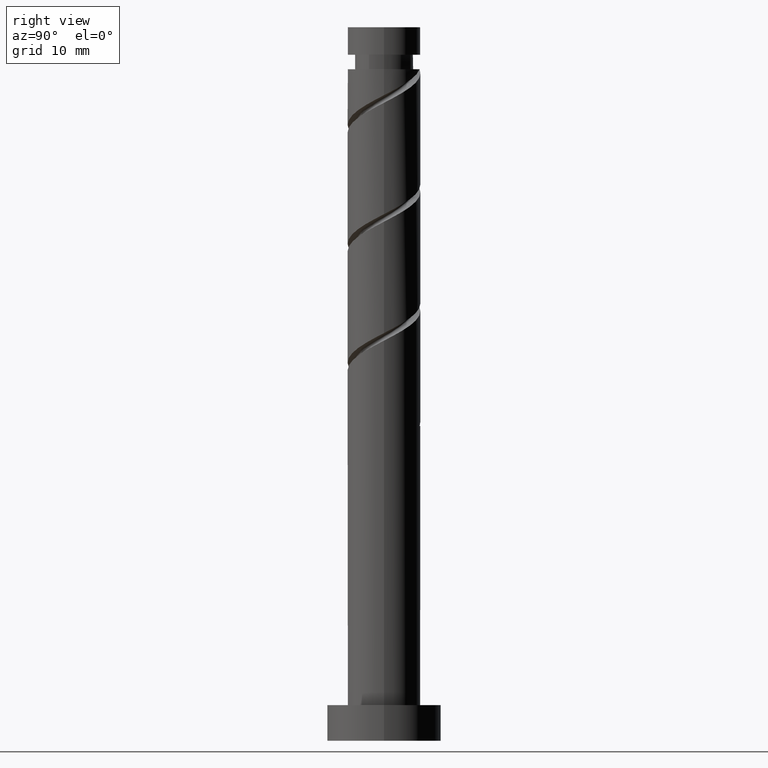
[diagram: clean part render]
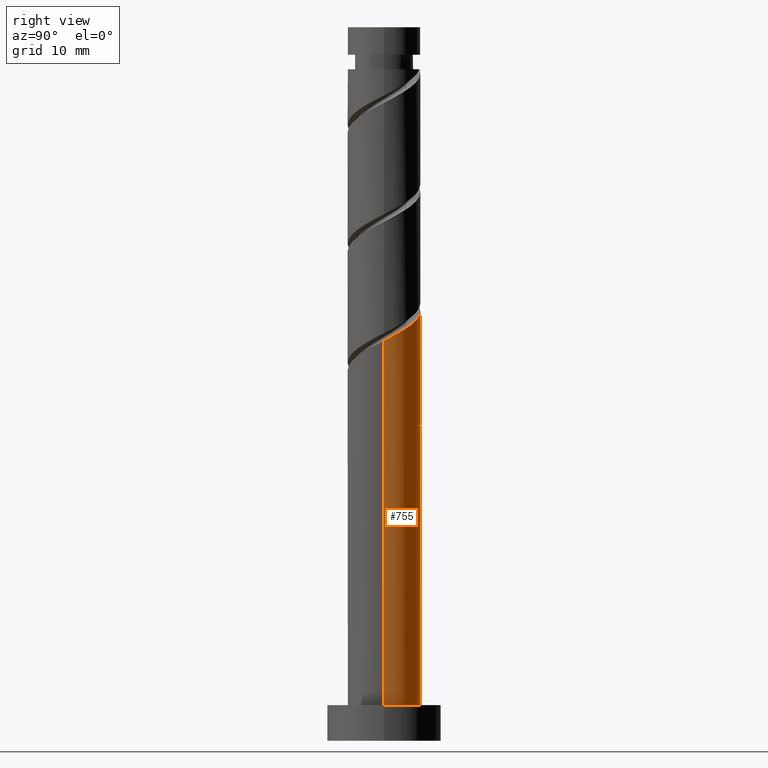
[diagram: same view with one face highlighted and labeled with its STEP entity id]
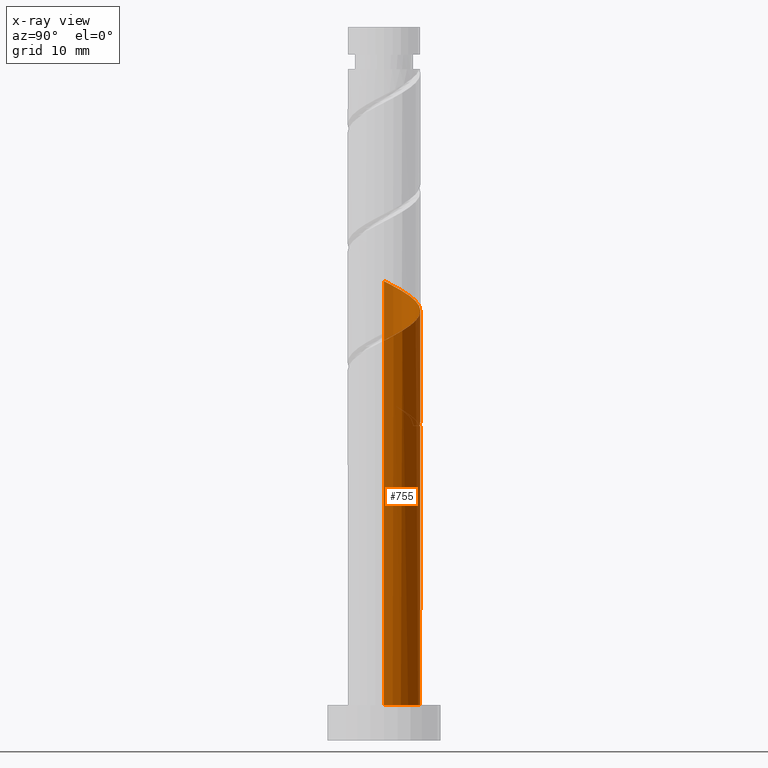
[diagram: x-ray of the same camera — body ghosted, the highlighted face saturated]
A machine part, right view. The second image highlights one B-rep face of the part: STEP entity #755.
The next image is the same camera in x-ray: the body ghosted, the highlighted face saturated — about 0% of this face is hidden behind the body in this view.
In plain terms, the highlighted cylindrical surface (edge-blend (fillet) strip) has radius 5.1 mm, axis along (-0, -0, -1).
Its self-contained STEP definition (entity closure, byte-faithful):
#5 = CARTESIAN_POINT ( 'NONE',  ( -5.099999999999997868, -2.323009298041986079E-15, 48.80950097679061628 ) ) ;
#18 = CARTESIAN_POINT ( 'NONE',  ( 5.099999999999999645, 6.245698675651500839E-16, 5.000000000000000000 ) ) ;
#28 = CARTESIAN_POINT ( 'NONE',  ( -2.663098675813944549, 4.349471857924601892, 45.03790534772777931 ) ) ;
#41 = CARTESIAN_POINT ( 'NONE',  ( -5.099999999999999645, 0.000000000000000000, 100.0000000000000000 ) ) ;
#45 = DIRECTION ( 'NONE',  ( -0.000000000000000000, -0.000000000000000000, -1.000000000000000000 ) ) ;
#52 = CARTESIAN_POINT ( 'NONE',  ( 0.000000000000000000, 0.000000000000000000, 100.0000000000000000 ) ) ;
#55 = DIRECTION ( 'NONE',  ( 1.000000000000000000, 0.000000000000000000, 0.000000000000000000 ) ) ;
#57 = EDGE_CURVE ( 'NONE', #1335, #1312, #670, .T. ) ;
#70 = VECTOR ( 'NONE', #715, 1000.000000000000000 ) ;
#106 = CARTESIAN_POINT ( 'NONE',  ( -5.099999999999999645, 0.000000000000000000, 5.000000000000000000 ) ) ;
#110 = CARTESIAN_POINT ( 'NONE',  ( -4.745835839194858963, 1.867362361035910689, 47.81568312550557209 ) ) ;
#116 = CARTESIAN_POINT ( 'NONE',  ( -5.099999999999999645, 0.000000000000000000, 100.0000000000000000 ) ) ;
#150 = CARTESIAN_POINT ( 'NONE',  ( -4.550174408452618557, 2.472770727741262053, 46.42679423661669347 ) ) ;
#157 = CARTESIAN_POINT ( 'NONE',  ( -4.835838561039004446, 1.620081915079684354, 46.88975719957963406 ) ) ;
#162 = CARTESIAN_POINT ( 'NONE',  ( -5.100000000000006750, 3.674985770535848914E-15, 64.41445786681309471 ) ) ;
#209 = EDGE_CURVE ( 'NONE', #394, #329, #869, .T. ) ;
#237 = EDGE_CURVE ( 'NONE', #1312, #1189, #827, .T. ) ;
#239 = DIRECTION ( 'NONE',  ( -1.510533289715479076E-30, -6.802837160693364202E-15, -1.000000000000000000 ) ) ;
#253 = CARTESIAN_POINT ( 'NONE',  ( -1.645074290006728557, 4.910439165662267236, 45.50086831069075544 ) ) ;
#261 = CARTESIAN_POINT ( 'NONE',  ( -3.990101162325420781, 3.176333218415438697, 45.96383127365371735 ) ) ;
#318 = CARTESIAN_POINT ( 'NONE',  ( 5.100000000000006750, -3.742211119996870112E-15, 56.08112453347976611 ) ) ;
#321 = AXIS2_PLACEMENT_3D ( 'NONE', #382, #509, #55 ) ;
#329 = VERTEX_POINT ( 'NONE', #1100 ) ;
#331 = CARTESIAN_POINT ( 'NONE',  ( -1.014887185848751594, 4.998000000000004661, 60.77864608846851979 ) ) ;
#338 = FACE_OUTER_BOUND ( 'NONE', #535, .T. ) ;
#345 = VECTOR ( 'NONE', #962, 1000.000000000000000 ) ;
#366 = CARTESIAN_POINT ( 'NONE',  ( -1.014887185848751594, 4.998000000000004661, 44.11197942180186260 ) ) ;
#371 = CARTESIAN_POINT ( 'NONE',  ( 0.1336049362678445318, 5.176951993240419547, 44.57494238476482451 ) ) ;
#379 = ORIENTED_EDGE ( 'NONE', *, *, #209, .F. ) ;
#382 = CARTESIAN_POINT ( 'NONE',  ( 0.000000000000000000, 0.000000000000000000, 5.000000000000000000 ) ) ;
#394 = VERTEX_POINT ( 'NONE', #5 ) ;
#408 = ORIENTED_EDGE ( 'NONE', *, *, #478, .T. ) ;
#424 = ORIENTED_EDGE ( 'NONE', *, *, #711, .T. ) ;
#425 = CARTESIAN_POINT ( 'NONE',  ( 5.099999999999999645, 6.245698675651500839E-16, 100.0000000000000000 ) ) ;
#443 = CARTESIAN_POINT ( 'NONE',  ( -2.663098675813944549, 4.349471857924601892, 61.70457201439446493 ) ) ;
#448 = ORIENTED_EDGE ( 'NONE', *, *, #735, .F. ) ;
#461 = CIRCLE ( 'NONE', #321, 5.099999999999999645 ) ;
#478 = EDGE_CURVE ( 'NONE', #852, #1459, #1247, .T. ) ;
#484 = CARTESIAN_POINT ( 'NONE',  ( -3.820951375190247301, 3.377918084920318531, 46.88975719957964827 ) ) ;
#500 = ORIENTED_EDGE ( 'NONE', *, *, #57, .F. ) ;
#509 = DIRECTION ( 'NONE',  ( 0.000000000000000000, 0.000000000000000000, 1.000000000000000000 ) ) ;
#524 = LINE ( 'NONE', #41, #345 ) ;
#535 = EDGE_LOOP ( 'NONE', ( #448, #408, #1216, #1440, #500, #424, #379, #1318 ) ) ;
#571 = CARTESIAN_POINT ( 'NONE',  ( -1.896169435429662320, 4.819048006759585334, 61.24160905143150302 ) ) ;
#576 = CARTESIAN_POINT ( 'NONE',  ( -4.550174408452618557, 2.472770727741262053, 63.09346090328337198 ) ) ;
#585 = CARTESIAN_POINT ( 'NONE',  ( -5.099999999999997868, 0.06579853909330653228, 48.77548360285825879 ) ) ;
#590 = VECTOR ( 'NONE', #1344, 1000.000000000000000 ) ;
#596 = DIRECTION ( 'NONE',  ( 0.000000000000000000, 1.000000000000000000, -6.802837160693361835E-15 ) ) ;
#625 = CARTESIAN_POINT ( 'NONE',  ( -5.100000000000004974, 0.8315772962843317462, 47.31787168778081565 ) ) ;
#670 =( BOUNDED_CURVE ( )  B_SPLINE_CURVE ( 2, ( #366, #1068, #28, #1408, #261, #150, #157, #625, #1076 ),
 .UNSPECIFIED., .F., .T. ) 
 B_SPLINE_CURVE_WITH_KNOTS ( ( 3, 2, 2, 2, 3 ),
 ( 0.000000000000000000, 0.01388888888888884128, 0.02777777777777779011, 0.04166666666666662966, 0.05452480538552905570 ),
 .UNSPECIFIED. ) 
 CURVE ( )  GEOMETRIC_REPRESENTATION_ITEM ( )  RATIONAL_B_SPLINE_CURVE ( ( 0.9090909090909141677, 0.8952797754656484086, 0.9090909090909141677, 0.8952797754656484086, 0.9090909090909141677, 0.8952797754656484086, 0.9090909090909141677, 0.8963047551055886020, 0.9071930855141262517 ) ) 
 REPRESENTATION_ITEM ( '' )  );
#682 =( BOUNDED_CURVE ( )  B_SPLINE_CURVE ( 2, ( #934, #1170, #917, #1376, #710, #1051, #1256, #1392, #825, #686, #807, #1140, #331, #571, #443, #693, #1146, #576, #1028, #1479, #908 ),
 .UNSPECIFIED., .F., .T. ) 
 B_SPLINE_CURVE_WITH_KNOTS ( ( 3, 2, 2, 2, 2, 2, 2, 2, 2, 2, 3 ),
 ( 0.1795248053855290626, 0.1805555555555555802, 0.1944444444444444198, 0.2083333333333333703, 0.2222222222222222099, 0.2361111111111111605, 0.2500000000000000000, 0.2638888888888888395, 0.2777777777777777901, 0.2916666666666666297, 0.3045248053855290626 ),
 .UNSPECIFIED. ) 
 CURVE ( )  GEOMETRIC_REPRESENTATION_ITEM ( )  RATIONAL_B_SPLINE_CURVE ( ( 0.9071930855141264738, 0.9080659294509740853, 0.9090909090909141677, 0.8952797754656484086, 0.9090909090909141677, 0.8952797754656484086, 0.9090909090909141677, 0.8952797754656484086, 0.9090909090909141677, 0.8952797754656484086, 0.9090909090909141677, 0.8952797754656484086, 0.9090909090909141677, 0.8952797754656484086, 0.9090909090909141677, 0.8952797754656484086, 0.9090909090909141677, 0.8952797754656484086, 0.9090909090909141677, 0.8963047551055884909, 0.9071930855141264738 ) ) 
 REPRESENTATION_ITEM ( '' )  );
#686 = CARTESIAN_POINT ( 'NONE',  ( 1.645074290006736550, 4.910439165662274341, 59.38975719957966248 ) ) ;
#693 = CARTESIAN_POINT ( 'NONE',  ( -3.430027916198228333, 3.879895709089618894, 62.16753497735742684 ) ) ;
#710 = CARTESIAN_POINT ( 'NONE',  ( 4.745835839194866956, 1.867362361035910912, 57.07494238476483872 ) ) ;
#711 = EDGE_CURVE ( 'NONE', #1335, #329, #1377, .T. ) ;
#715 = DIRECTION ( 'NONE',  ( -0.000000000000000000, -0.000000000000000000, -1.000000000000000000 ) ) ;
#735 = EDGE_CURVE ( 'NONE', #852, #990, #682, .T. ) ;
#755 = ADVANCED_FACE ( 'NONE', ( #338 ), #1088, .T. ) ;
#807 = CARTESIAN_POINT ( 'NONE',  ( 0.7557346768694481742, 5.043695579451349609, 59.85272016254260308 ) ) ;
#816 = CARTESIAN_POINT ( 'NONE',  ( -3.225333278195726461, 4.051654904341470242, 46.42679423661668636 ) ) ;
#825 = CARTESIAN_POINT ( 'NONE',  ( 2.435203784101234170, 4.481047035001873624, 58.92679423661666505 ) ) ;
#827 = LINE ( 'NONE', #116, #70 ) ;
#833 = CARTESIAN_POINT ( 'NONE',  ( 1.014887185848753370, 4.997999999999998444, 44.11197942180186971 ) ) ;
#852 = VERTEX_POINT ( 'NONE', #318 ) ;
#869 =( BOUNDED_CURVE ( )  B_SPLINE_CURVE ( 2, ( #1371, #585, #1286, #1151, #110, #1038, #484, #816, #944, #253, #1482, #371, #833 ),
 .UNSPECIFIED., .F., .T. ) 
 B_SPLINE_CURVE_WITH_KNOTS ( ( 3, 2, 2, 2, 2, 2, 3 ),
 ( 0.9295248053855290626, 0.9305555555555555802, 0.9444444444444444198, 0.9583333333333333703, 0.9722222222222222099, 0.9861111111111111605, 1.000000000000000000 ),
 .UNSPECIFIED. ) 
 CURVE ( )  GEOMETRIC_REPRESENTATION_ITEM ( )  RATIONAL_B_SPLINE_CURVE ( ( 0.9071930855141199235, 0.9080659294509675350, 0.9090909090909076173, 0.8952797754656421914, 0.9090909090909076173, 0.8952797754656421914, 0.9090909090909076173, 0.8952797754656421914, 0.9090909090909076173, 0.8952797754656421914, 0.9090909090909076173, 0.8952797754656421914, 0.9090909090909076173 ) ) 
 REPRESENTATION_ITEM ( '' )  );
#876 = AXIS2_PLACEMENT_3D ( 'NONE', #52, #45, #1311 ) ;
#908 = CARTESIAN_POINT ( 'NONE',  ( -5.100000000000006750, 3.674985770535848914E-15, 64.41445786681309471 ) ) ;
#917 = CARTESIAN_POINT ( 'NONE',  ( 5.098302459915178275, 0.1315751770772746743, 56.14901645883889358 ) ) ;
#926 = CARTESIAN_POINT ( 'NONE',  ( 0.000000000000000000, 0.000000000000000000, 44.11197942180189813 ) ) ;
#934 = CARTESIAN_POINT ( 'NONE',  ( 5.100000000000006750, -3.742211119996870112E-15, 56.08112453347976611 ) ) ;
#944 = CARTESIAN_POINT ( 'NONE',  ( -2.435203784101227065, 4.481047035001870071, 45.96383127365373156 ) ) ;
#945 = AXIS2_PLACEMENT_3D ( 'NONE', #926, #239, #596 ) ;
#962 = DIRECTION ( 'NONE',  ( -0.000000000000000000, -0.000000000000000000, -1.000000000000000000 ) ) ;
#970 = EDGE_CURVE ( 'NONE', #990, #394, #524, .T. ) ;
#990 = VERTEX_POINT ( 'NONE', #162 ) ;
#1028 = CARTESIAN_POINT ( 'NONE',  ( -4.835838561039004446, 1.620081915079684354, 63.55642386624629836 ) ) ;
#1037 = CARTESIAN_POINT ( 'NONE',  ( -1.014887185848751594, 4.998000000000004661, 44.11197942180186971 ) ) ;
#1038 = CARTESIAN_POINT ( 'NONE',  ( -4.416569472184766809, 2.704181265499164155, 47.35272016254259597 ) ) ;
#1051 = CARTESIAN_POINT ( 'NONE',  ( 4.416569472184775691, 2.704181265499165043, 57.53790534772780774 ) ) ;
#1068 = CARTESIAN_POINT ( 'NONE',  ( -1.896169435429662320, 4.819048006759585334, 44.57494238476484583 ) ) ;
#1076 = CARTESIAN_POINT ( 'NONE',  ( -5.100000000000007638, 3.674985770535848914E-15, 47.74779120014642331 ) ) ;
#1088 = CYLINDRICAL_SURFACE ( 'NONE', #876, 5.099999999999999645 ) ;
#1100 = CARTESIAN_POINT ( 'NONE',  ( 1.014887185848753370, 4.997999999999998444, 44.11197942180186971 ) ) ;
#1140 = CARTESIAN_POINT ( 'NONE',  ( -0.1336049362678436714, 5.176951993240429317, 60.31568312550558630 ) ) ;
#1146 = CARTESIAN_POINT ( 'NONE',  ( -3.990101162325420781, 3.176333218415438697, 62.63049794032038164 ) ) ;
#1151 = CARTESIAN_POINT ( 'NONE',  ( -5.075102206204952004, 1.030543456572657224, 48.27864608846851979 ) ) ;
#1160 = EDGE_CURVE ( 'NONE', #1459, #1189, #461, .T. ) ;
#1170 = CARTESIAN_POINT ( 'NONE',  ( 5.100000000000006750, 0.06579853909330546369, 56.11514190741212360 ) ) ;
#1189 = VERTEX_POINT ( 'NONE', #106 ) ;
#1216 = ORIENTED_EDGE ( 'NONE', *, *, #1160, .T. ) ;
#1247 = LINE ( 'NONE', #425, #590 ) ;
#1256 = CARTESIAN_POINT ( 'NONE',  ( 3.820951375190252186, 3.377918084920322528, 58.00086831069074833 ) ) ;
#1286 = CARTESIAN_POINT ( 'NONE',  ( -5.098302459915170282, 0.1315751770772753959, 48.74160905143149591 ) ) ;
#1311 = DIRECTION ( 'NONE',  ( -1.000000000000000000, 0.000000000000000000, 0.000000000000000000 ) ) ;
#1312 = VERTEX_POINT ( 'NONE', #1370 ) ;
#1318 = ORIENTED_EDGE ( 'NONE', *, *, #970, .F. ) ;
#1335 = VERTEX_POINT ( 'NONE', #1037 ) ;
#1344 = DIRECTION ( 'NONE',  ( -0.000000000000000000, -0.000000000000000000, -1.000000000000000000 ) ) ;
#1370 = CARTESIAN_POINT ( 'NONE',  ( -5.100000000000006750, 3.674985770535848914E-15, 47.74779120014642331 ) ) ;
#1371 = CARTESIAN_POINT ( 'NONE',  ( -5.099999999999997868, -2.323009298041986079E-15, 48.80950097679061628 ) ) ;
#1376 = CARTESIAN_POINT ( 'NONE',  ( 5.075102206204961774, 1.030543456572657224, 56.61197942180188392 ) ) ;
#1377 = CIRCLE ( 'NONE', #945, 5.099999999999999645 ) ;
#1392 = CARTESIAN_POINT ( 'NONE',  ( 3.225333278195734454, 4.051654904341476460, 58.46383127365373866 ) ) ;
#1408 = CARTESIAN_POINT ( 'NONE',  ( -3.430027916198228333, 3.879895709089618894, 45.50086831069075544 ) ) ;
#1440 = ORIENTED_EDGE ( 'NONE', *, *, #237, .F. ) ;
#1459 = VERTEX_POINT ( 'NONE', #18 ) ;
#1479 = CARTESIAN_POINT ( 'NONE',  ( -5.100000000000006750, 0.8315772962843314131, 63.98453835444750837 ) ) ;
#1482 = CARTESIAN_POINT ( 'NONE',  ( -0.7557346768694422900, 5.043695579451344280, 45.03790534772780063 ) ) ;